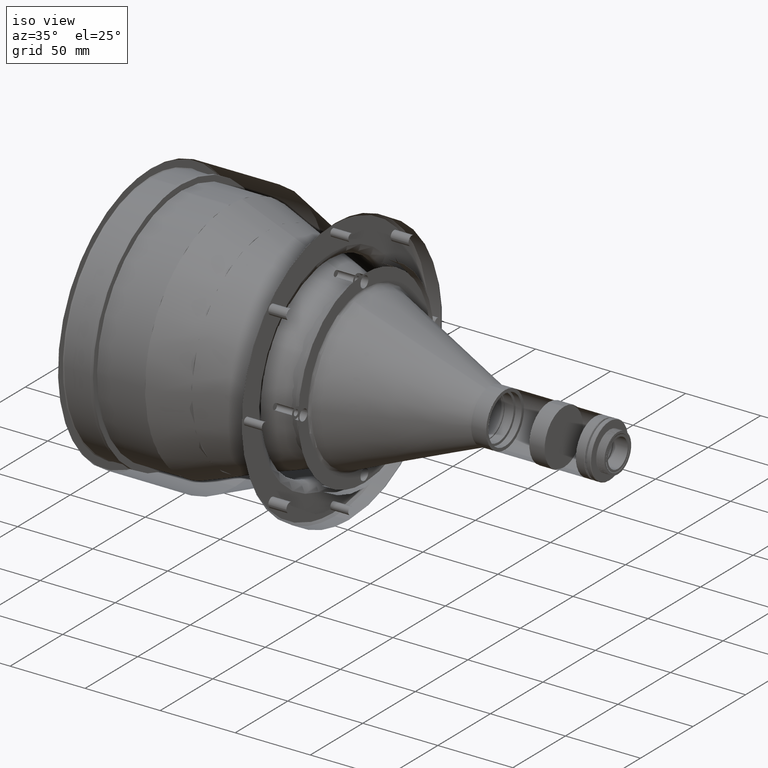
[diagram: clean part render]
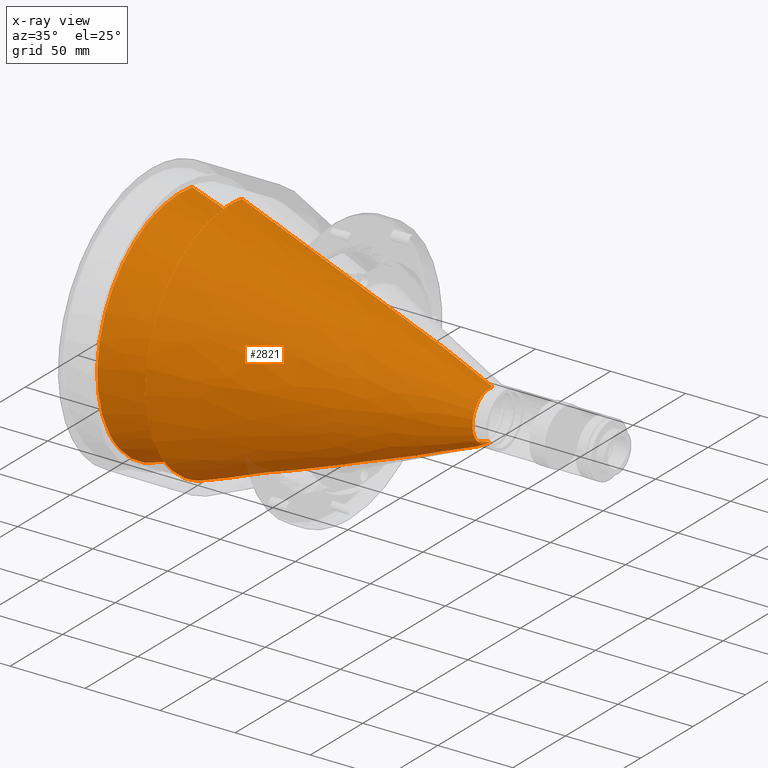
[diagram: x-ray — body ghosted, one internal face saturated and labeled with its STEP entity id]
A machine part, iso view, then the same camera in x-ray: the body is ghosted and one INTERNAL B-rep face — a face not visible from any outside direction — is saturated and labeled: STEP entity #2821.
In plain terms, the highlighted face is a freeform B-spline surface patch.
Its self-contained STEP definition (entity closure, byte-faithful):
#152 = CARTESIAN_POINT ( 'NONE',  ( 312.8281239397300055, 0.6957813332210079915, -63.53453887340629080 ) ) ;
#194 = CARTESIAN_POINT ( 'NONE',  ( 38.05671031457399067, 6.376084525311458862, 10.19077467003822690 ) ) ;
#306 = CARTESIAN_POINT ( 'NONE',  ( 71.03891171600001542, -51.15315837823911238, -6.280906261903766108 ) ) ;
#398 = CARTESIAN_POINT ( 'NONE',  ( 71.03891171600000121, -34.62062153171639522, -140.6741578192900022 ) ) ;
#464 = CARTESIAN_POINT ( 'NONE',  ( 38.05671031457398357, -66.87561608679088465, -26.78701782049433433 ) ) ;
#486 = CARTESIAN_POINT ( 'NONE',  ( 71.03891171600000121, -72.20174824662568369, -33.16643465276770542 ) ) ;
#549 = CARTESIAN_POINT ( 'NONE',  ( 38.05671031457399778, -44.70217141677154160, -3.527501844112061136 ) ) ;
#576 = CARTESIAN_POINT ( 'NONE',  ( 71.03891171600000121, -60.70361418970979628, -120.7859396660685150 ) ) ;
#645 = CARTESIAN_POINT ( 'NONE',  ( 38.05671031457398357, -53.84246253192723941, -125.5366221208920336 ) ) ;
#670 = CARTESIAN_POINT ( 'NONE',  ( 71.03891171599997278, -79.47456246737256436, -56.75482404482161769 ) ) ;
#700 = CARTESIAN_POINT ( 'NONE',  ( 71.03891171600000121, -35.34352670410090269, 5.169056963025440155 ) ) ;
#740 = CARTESIAN_POINT ( 'NONE',  ( 38.05671031457397646, -71.72742678579534470, -100.4569420329792422 ) ) ;
#829 = CARTESIAN_POINT ( 'NONE',  ( 38.05671031457399067, -46.89464270951236813, -5.098048380680411995 ) ) ;
#934 = ORIENTED_EDGE ( 'NONE', *, *, #12812, .F. ) ;
#943 = CARTESIAN_POINT ( 'NONE',  ( 71.03891171600000121, -29.89679541622244940, 6.262689679596229908 ) ) ;
#1032 = CARTESIAN_POINT ( 'NONE',  ( 71.03891171599997278, -9.975618067402605149, 11.45282962155964235 ) ) ;
#1047 = CARTESIAN_POINT ( 'NONE',  ( 38.05671031457399778, 0.000000000000000000, -146.8487528718239901 ) ) ;
#1154 = EDGE_LOOP ( 'NONE', ( #15672, #934, #14137, #7900 ) ) ;
#1200 = CARTESIAN_POINT ( 'NONE',  ( 38.05671031457399778, 0.000000000000000000, -146.8487528718239901 ) ) ;
#1459 = CARTESIAN_POINT ( 'NONE',  ( 312.8281239397300055, 4.629745305157979551, -69.28085245303498141 ) ) ;
#1556 = CARTESIAN_POINT ( 'NONE',  ( 38.05671031457399778, -54.28194762667949647, -9.720746882253679999 ) ) ;
#1655 = CARTESIAN_POINT ( 'NONE',  ( 71.03891171600000121, -81.22995249915329907, -74.31113822075759856 ) ) ;
#1718 = CARTESIAN_POINT ( 'NONE',  ( 71.03891171600000121, -68.25673915228760791, -25.93023645105522590 ) ) ;
#1744 = CARTESIAN_POINT ( 'NONE',  ( 38.05671031457399778, -69.11688307345339410, -28.31801530551019752 ) ) ;
#1749 = EDGE_CURVE ( 'NONE', #13409, #3978, #9203, .T. ) ;
#1807 = CARTESIAN_POINT ( 'NONE',  ( 71.03891171600002963, -6.879268089577080580, -148.2616033100123332 ) ) ;
#1895 = CARTESIAN_POINT ( 'NONE',  ( 71.03891171600000121, -41.84726043167843557, -136.7127365195804316 ) ) ;
#1963 = CARTESIAN_POINT ( 'NONE',  ( 38.05671031457399778, -37.53446332763071780, -137.4043306474347617 ) ) ;
#1986 = CARTESIAN_POINT ( 'NONE',  ( 71.03891171600001542, -69.66581142555800454, -28.29272098538241664 ) ) ;
#2014 = CARTESIAN_POINT ( 'NONE',  ( 301.8340568059210227, 0.7908612350757660003, -73.46420596432228933 ) ) ;
#2053 = CARTESIAN_POINT ( 'NONE',  ( 38.05671031457399778, -36.66643379590394147, 1.421971415113263193 ) ) ;
#2079 = CARTESIAN_POINT ( 'NONE',  ( 71.03891171600000121, -51.92249416976681431, -129.5218628087218065 ) ) ;
#2147 = CARTESIAN_POINT ( 'NONE',  ( 38.05671031457397646, -77.07840901102601094, -83.80246185347523635 ) ) ;
#2236 = CARTESIAN_POINT ( 'NONE',  ( 38.05671031457396936, -61.45554576600308394, -19.04915952185774941 ) ) ;
#2821 = ADVANCED_FACE ( 'NONE', ( #5855 ), #15505, .F. ) ;
#2867 = CARTESIAN_POINT ( 'NONE',  ( 312.8281239397310287, 2.101415294670490042, -63.86624048085550243 ) ) ;
#2959 = CARTESIAN_POINT ( 'NONE',  ( 71.03891171600000121, -9.827790563158519581E-15, -148.4731538720080266 ) ) ;
#3118 = CARTESIAN_POINT ( 'NONE',  ( 71.03891171600000121, -57.19197900579691662, -11.91127326299534772 ) ) ;
#3146 = CARTESIAN_POINT ( 'NONE',  ( 301.8340568059210227, 4.928570840658109908, -66.29045889944379155 ) ) ;
#3183 = CARTESIAN_POINT ( 'NONE',  ( 38.05671031457399778, -15.09690114236384240, 8.951187844582982223 ) ) ;
#3203 = CARTESIAN_POINT ( 'NONE',  ( 71.03891171600000121, -41.00348297132352116, 0.8163269138792726975 ) ) ;
#3291 = CARTESIAN_POINT ( 'NONE',  ( 71.03891171599997278, -78.38578406122067577, -85.47537681962413103 ) ) ;
#3358 = CARTESIAN_POINT ( 'NONE',  ( 38.05671031457398357, -65.92607116230033171, -111.0898646095812694 ) ) ;
#3381 = CARTESIAN_POINT ( 'NONE',  ( 71.03891171600000121, -80.26018975375622233, -67.71771501864100173 ) ) ;
#3448 = CARTESIAN_POINT ( 'NONE',  ( 38.05671031457399067, -76.26405228424427207, -49.04826227293060725 ) ) ;
#3472 = CARTESIAN_POINT ( 'NONE',  ( 71.03891171599998700, -70.15944715759702888, -107.2800362242419965 ) ) ;
#3541 = CARTESIAN_POINT ( 'NONE',  ( 38.05671031457398357, -78.51959019937328321, -73.12674455888888758 ) ) ;
#3635 = CARTESIAN_POINT ( 'NONE',  ( 38.05671031457399067, -56.03466016865046839, -13.05146247734951537 ) ) ;
#3662 = CARTESIAN_POINT ( 'NONE',  ( 71.03891171599998700, -31.17459507432075227, 5.736942135528978248 ) ) ;
#3734 = CARTESIAN_POINT ( 'NONE',  ( 38.05671031457398357, -71.87527263645489484, -36.32064329710928519 ) ) ;
#3978 = VERTEX_POINT ( 'NONE', #1047 ) ;
#4365 = CARTESIAN_POINT ( 'NONE',  ( 301.8340568059219891, 4.588428590419959541, -70.87047576100739832 ) ) ;
#4458 = CARTESIAN_POINT ( 'NONE',  ( 301.8340568059219891, 2.344381037844579740, -63.36167525664220079 ) ) ;
#4552 = CARTESIAN_POINT ( 'NONE',  ( 38.05671031457399778, -35.28419912749359355, -141.4857888673030004 ) ) ;
#4606 = CARTESIAN_POINT ( 'NONE',  ( 71.03891171600002963, -44.48213796145648757, -1.415300178817668453 ) ) ;
#4697 = CARTESIAN_POINT ( 'NONE',  ( 71.03891171600001542, -23.08043111412778003, -145.1697674717686368 ) ) ;
#4765 = CARTESIAN_POINT ( 'NONE',  ( 38.05671031457399067, -76.87633949925070453, -51.67513521243261465 ) ) ;
#4788 = CARTESIAN_POINT ( 'NONE',  ( 71.03891171600000121, -45.31992441818988482, -134.4656149674768244 ) ) ;
#4854 = CARTESIAN_POINT ( 'NONE',  ( 38.05671031457399778, -40.17326951209265928, -0.5810521141859347205 ) ) ;
#4878 = CARTESIAN_POINT ( 'NONE',  ( 71.03891171599998700, -71.45425817169692095, -104.8574821450771566 ) ) ;
#4904 = CARTESIAN_POINT ( 'NONE',  ( 38.05671031457399778, 0.000000000000000000, -146.8487528718239901 ) ) ;
#4906 = CARTESIAN_POINT ( 'NONE',  ( 38.05671031457399778, 11.71913937209819956, 9.525873457250620291 ) ) ;
#4943 = CARTESIAN_POINT ( 'NONE',  ( 38.05671031457398357, -75.24601029676011876, -45.13831364069653773 ) ) ;
#4964 = CARTESIAN_POINT ( 'NONE',  ( 71.03891171600000121, -80.25701044225991154, -69.09953360225745200 ) ) ;
#5032 = CARTESIAN_POINT ( 'NONE',  ( 38.05671031457399067, -29.29185173212004756, 4.754860463382906133 ) ) ;
#5127 = CARTESIAN_POINT ( 'NONE',  ( 38.05671031457397646, -73.29298297572074716, -96.71802628340445551 ) ) ;
#5148 = CARTESIAN_POINT ( 'NONE',  ( 71.03891171599998700, -14.05116279898930642, 10.79925034908082004 ) ) ;
#5327 = CARTESIAN_POINT ( 'NONE',  ( 71.03891171599997278, -15.40828778296894264, 10.54571033745595088 ) ) ;
#5660 = CARTESIAN_POINT ( 'NONE',  ( 301.8340568059210227, 1.098064737847640227E-15, -63.00322316175550696 ) ) ;
#5855 = FACE_OUTER_BOUND ( 'NONE', #1154, .T. ) ;
#5897 = CARTESIAN_POINT ( 'NONE',  ( 38.05671031457399778, 2.338099930417981476, 10.37945372494602481 ) ) ;
#5988 = CARTESIAN_POINT ( 'NONE',  ( 38.05671031457399778, 11.71905027885016004, 9.525284016133939602 ) ) ;
#6009 = CARTESIAN_POINT ( 'NONE',  ( 71.03891171600000121, -47.86361056173475248, -3.794017034601437910 ) ) ;
#6076 = CARTESIAN_POINT ( 'NONE',  ( 38.05671031457399778, -13.76687304012811097, 9.199642144594054827 ) ) ;
#6095 = CARTESIAN_POINT ( 'NONE',  ( 71.03891171600000121, -80.14171854056162658, -73.22880005160756411 ) ) ;
#6108 = VERTEX_POINT ( 'NONE', #13522 ) ;
#6119 = CARTESIAN_POINT ( 'NONE',  ( 301.8340568059210227, 1.098064737847640227E-15, -63.00322316175550696 ) ) ;
#6163 = CARTESIAN_POINT ( 'NONE',  ( 38.05671031457399778, -30.54388108301824900, 4.239738514417793702 ) ) ;
#6184 = CARTESIAN_POINT ( 'NONE',  ( 71.03891171599998700, -57.89578625190578975, -123.8114025171873465 ) ) ;
#6252 = CARTESIAN_POINT ( 'NONE',  ( 38.05671031457400488, -33.92057187863734669, -139.2072266835781420 ) ) ;
#6275 = CARTESIAN_POINT ( 'NONE',  ( 71.03891171599998700, -68.02988693482525662, -110.8134174175578437 ) ) ;
#6302 = CARTESIAN_POINT ( 'NONE',  ( 71.03891171600000121, -9.827790563158519581E-15, -148.4731538720080266 ) ) ;
#6347 = CARTESIAN_POINT ( 'NONE',  ( 38.05671031457399067, -22.61435096974433279, -143.6118960994778320 ) ) ;
#6370 = CARTESIAN_POINT ( 'NONE',  ( 71.03891171600000121, -60.01430685627177297, -14.92828249250329975 ) ) ;
#6439 = CARTESIAN_POINT ( 'NONE',  ( 38.05671031457398357, -70.00832826489842375, -104.1151409645158594 ) ) ;
#6526 = CARTESIAN_POINT ( 'NONE',  ( 38.05671031457398357, -55.77844643650935552, -123.6538344810680172 ) ) ;
#6593 = CARTESIAN_POINT ( 'NONE',  ( 312.8280654524806437, -0.6972131858392265347, -72.84861536536843118 ) ) ;
#6682 = CARTESIAN_POINT ( 'NONE',  ( 71.03891171600000121, 11.96116315722558099, 11.13154888017520072 ) ) ;
#6819 = CARTESIAN_POINT ( 'NONE',  ( 71.03891171599998700, 6.507525218361130293, 11.81084046286517086 ) ) ;
#7152 = CARTESIAN_POINT ( 'NONE',  ( 38.05671031457399778, -77.80594151716410067, -50.46336826456379754 ) ) ;
#7220 = CARTESIAN_POINT ( 'NONE',  ( 71.03891171600000121, -9.827790563158519581E-15, -148.4731538720080266 ) ) ;
#7292 = CARTESIAN_POINT ( 'NONE',  ( 38.05671031457399778, 9.054373412062425075, 9.926819279266585028 ) ) ;
#7342 = CARTESIAN_POINT ( 'NONE',  ( 71.03891171600000121, -79.41340843399309790, -50.09645196926359745 ) ) ;
#7401 = CARTESIAN_POINT ( 'NONE',  ( 71.03891171599997278, -75.45663717382562652, -40.76410658585540148 ) ) ;
#7427 = CARTESIAN_POINT ( 'NONE',  ( 312.8281239397300055, 3.231429552567260277, -71.70604224714951158 ) ) ;
#7486 = CARTESIAN_POINT ( 'NONE',  ( 71.03891171600000121, -73.76338217447010948, -99.86045339898154793 ) ) ;
#7513 = CARTESIAN_POINT ( 'NONE',  ( 38.05671031457399778, -34.62811162469369464, 3.683469664910870023 ) ) ;
#7553 = CARTESIAN_POINT ( 'NONE',  ( 38.05671031457399778, -43.58204880972693473, -2.767818743318413155 ) ) ;
#7575 = CARTESIAN_POINT ( 'NONE',  ( 71.03891171600000121, -79.81490310514577402, -77.33695620152366246 ) ) ;
#7638 = CARTESIAN_POINT ( 'NONE',  ( 38.05671031457399067, -33.01251345188338604, 3.149380294662648350 ) ) ;
#7661 = CARTESIAN_POINT ( 'NONE',  ( 71.03891171600001542, -77.43014013100987825, -89.49153582096178638 ) ) ;
#7690 = CARTESIAN_POINT ( 'NONE',  ( 38.05671031457399778, -11.89424866322150010, 10.69213265681179870 ) ) ;
#7732 = CARTESIAN_POINT ( 'NONE',  ( 38.05671031457399778, -58.79934955808261066, -16.00684351903584712 ) ) ;
#7756 = CARTESIAN_POINT ( 'NONE',  ( 71.03891171600000121, -62.72555713833635593, -18.03363707061233612 ) ) ;
#7829 = CARTESIAN_POINT ( 'NONE',  ( 38.05671031457398357, -78.63556903991303670, -67.72805215109974597 ) ) ;
#7900 = ORIENTED_EDGE ( 'NONE', *, *, #1749, .F. ) ;
#7917 = CARTESIAN_POINT ( 'NONE',  ( 38.05671031457399067, -56.97491616675443282, -14.02271015798575071 ) ) ;
#8030 = CARTESIAN_POINT ( 'NONE',  ( 71.03891171600000121, -18.10453276335696771, 9.970320061962231861 ) ) ;
#8169 = CARTESIAN_POINT ( 'NONE',  ( 301.8339907913104980, -0.7779195069641582361, -73.38405174111143481 ) ) ;
#8541 = CARTESIAN_POINT ( 'NONE',  ( 38.05671031457399778, -74.29007776344430170, -97.37782023635080009 ) ) ;
#8635 = CARTESIAN_POINT ( 'NONE',  ( 71.03891171600000121, -75.82490710841180714, -97.98015420645459983 ) ) ;
#8731 = CARTESIAN_POINT ( 'NONE',  ( 38.05671031457399778, -11.76236210487919998, -146.8487528719979878 ) ) ;
#8796 = CARTESIAN_POINT ( 'NONE',  ( 71.03891171599998700, -80.19601892180773461, -64.96414132307256750 ) ) ;
#8823 = CARTESIAN_POINT ( 'NONE',  ( 301.8340568059210227, 5.165566925738009907, -69.40314593701710066 ) ) ;
#8882 = CARTESIAN_POINT ( 'NONE',  ( 71.03891171600000121, -56.93094650219146047, -124.7989138197957004 ) ) ;
#8908 = CARTESIAN_POINT ( 'NONE',  ( 312.8281239397300055, 2.059658160379710168, -72.49963462750740462 ) ) ;
#8969 = CARTESIAN_POINT ( 'NONE',  ( 71.03891171600000121, -10.96750392477119362, -147.7327269050224743 ) ) ;
#9034 = CARTESIAN_POINT ( 'NONE',  ( 38.05671031457399067, -47.70366460303858958, -130.7829342896594369 ) ) ;
#9059 = CARTESIAN_POINT ( 'NONE',  ( 71.03891171600000121, -79.99397388216713978, -60.84406154141084500 ) ) ;
#9126 = CARTESIAN_POINT ( 'NONE',  ( 38.05671031457398357, -78.19939772986202797, -77.15153695879597251 ) ) ;
#9149 = CARTESIAN_POINT ( 'NONE',  ( 71.03891171600000121, -78.74357346914212030, -52.68614807161412017 ) ) ;
#9203 = B_SPLINE_CURVE_WITH_KNOTS ( 'NONE', 3,
 ( #5988, #7292, #194, #5897, #10176, #10346, #10264, #15935, #6076, #3183, #14553, #11748, #16018, #5032, #6163, #7638, #2053, #4854, #7553, #549, #829, #9404, #14823, #3635, #7917, #7732, #2236, #9220, #464, #16293, #13244, #16386, #3734, #11833, #17514, #4943, #3448, #4765, #15095, #10617, #13424, #17792, #7829, #14917, #3541, #9126, #17884, #2147, #13516, #10434, #15008, #5127, #13607, #740, #6439, #12112, #16111, #3358, #10709, #16200, #9313, #13335, #6526, #645, #12205, #9034, #10799, #16477, #14732, #1963, #6252, #11925, #17606, #10521, #6347, #12018, #17703, #18251, #11267, #16664, #9493, #1200 ),
 .UNSPECIFIED., .F., .F.,
 ( 4, 2, 2, 1, 2, 2, 1, 2, 2, 1, 2, 2, 1, 2, 2, 1, 2, 2, 2, 2, 1, 2, 2, 1, 2, 2, 1, 2, 2, 1, 2, 2, 2, 2, 1, 2, 2, 1, 2, 2, 1, 2, 2, 1, 2, 2, 1, 4 ),
 ( 0.4761805262573740039, 0.4925498848118309847, 0.5007345640890594751, 0.5089192433662879100, 0.5252886019207448909, 0.5334732811979734368, 0.5416579604752018717, 0.5580273190296589636, 0.5662119983068873985, 0.5743966775841158334, 0.5907660361385729253, 0.5989507154158013602, 0.6071353946930299061, 0.6235047532474868870, 0.6316894325247153219, 0.6398741118019438678, 0.6562434703564008487, 0.6726128289108578295, 0.6807975081880862644, 0.6889821874653148104, 0.7053515460197717912, 0.7135362252970003372, 0.7217209045742287721, 0.7380902631286858639, 0.7462749424059142989, 0.7544596216831427338, 0.7708289802375998256, 0.7790136595148283716, 0.7871983387920569175, 0.8035676973465138984, 0.8117523766237424443, 0.8199370559009708792, 0.8363064144554279711, 0.8444910937326564060, 0.8526757730098849519, 0.8690451315643421548, 0.8772298108415707008, 0.8854144901187992467, 0.9017838486732564496, 0.9099685279504849955, 0.9181532072277136525, 0.9345225657821709664, 0.9427072450593996233, 0.9508919243366282803, 0.9672612828910855942, 0.9754459621683142512, 0.9836306414455426861, 1.000000000000000000 ),
 .UNSPECIFIED. ) ;
#9220 = CARTESIAN_POINT ( 'NONE',  ( 38.05671031457397646, -63.87038033670842907, -22.28982340841998422 ) ) ;
#9313 = CARTESIAN_POINT ( 'NONE',  ( 38.05671031457398357, -59.47543663570463224, -119.7212755075027104 ) ) ;
#9336 = CARTESIAN_POINT ( 'NONE',  ( 71.03891171599998700, 9.241151642608166128, 11.54141268647882690 ) ) ;
#9404 = CARTESIAN_POINT ( 'NONE',  ( 38.05671031457398357, -50.11734025242395774, -7.534409520270346938 ) ) ;
#9493 = CARTESIAN_POINT ( 'NONE',  ( 38.05671031457399067, -2.704462623055752246, -146.8487528719999773 ) ) ;
#9936 = CARTESIAN_POINT ( 'NONE',  ( 301.8340568059210227, 0.7768370804718148781, -62.99320131381438870 ) ) ;
#10033 = EDGE_CURVE ( 'NONE', #17008, #13409, #11111, .T. ) ;
#10036 = CARTESIAN_POINT ( 'NONE',  ( 71.03891171600000121, -55.40340998918549786, -8.512090037330882097 ) ) ;
#10176 = CARTESIAN_POINT ( 'NONE',  ( 38.05671031457399067, 0.9874648502324039345, 10.40780510535132386 ) ) ;
#10226 = CARTESIAN_POINT ( 'NONE',  ( 38.05671031457399778, -79.58571553875989935, -74.18790672089190252 ) ) ;
#10264 = CARTESIAN_POINT ( 'NONE',  ( 38.05671031457401199, -5.759467590481850863, 10.27320223436879587 ) ) ;
#10284 = CARTESIAN_POINT ( 'NONE',  ( 71.03891171600000121, -29.55228681455976414, -142.8463717160667272 ) ) ;
#10308 = CARTESIAN_POINT ( 'NONE',  ( 312.8281239397300055, -2.177865437639179972E-15, -63.54469016175830376 ) ) ;
#10346 = CARTESIAN_POINT ( 'NONE',  ( 38.05671031457401199, -1.715349647835610947, 10.39542016807629743 ) ) ;
#10367 = CARTESIAN_POINT ( 'NONE',  ( 71.03891171600000121, -67.28834610576751629, -111.9751605972152646 ) ) ;
#10434 = CARTESIAN_POINT ( 'NONE',  ( 38.05671031457399067, -75.86306440271476959, -89.06023311745828153 ) ) ;
#10455 = CARTESIAN_POINT ( 'NONE',  ( 71.03891171600000121, -30.83236577030462300, -142.3265620912832503 ) ) ;
#10521 = CARTESIAN_POINT ( 'NONE',  ( 38.05671031457399067, -26.43049243160304940, -142.2860806473529749 ) ) ;
#10547 = CARTESIAN_POINT ( 'NONE',  ( 71.03891171600000121, -65.74475508714174055, -114.2622733340349725 ) ) ;
#10617 = CARTESIAN_POINT ( 'NONE',  ( 38.05671031457399067, -77.86580887978617227, -56.98634003731132225 ) ) ;
#10640 = CARTESIAN_POINT ( 'NONE',  ( 71.03891171600000121, -19.09286429060104950, -146.2178535222223559 ) ) ;
#10666 = CARTESIAN_POINT ( 'NONE',  ( 71.03891171600000121, 4.047404929998219991, 12.32462496191249990 ) ) ;
#10709 = CARTESIAN_POINT ( 'NONE',  ( 38.05671031457397646, -64.41414385769385831, -113.3301624749999093 ) ) ;
#10757 = CARTESIAN_POINT ( 'NONE',  ( 71.03891171600000121, 11.96125621390869931, 11.13216452974696047 ) ) ;
#10799 = CARTESIAN_POINT ( 'NONE',  ( 38.05671031457399778, -44.40267328799469482, -133.1246548485498238 ) ) ;
#11043 = EDGE_CURVE ( 'NONE', #6108, #3978, #13977, .T. ) ;
#11111 = B_SPLINE_CURVE_WITH_KNOTS ( 'NONE', 3,
 ( #6682, #6593, #8169, #15336 ),
 .UNSPECIFIED., .F., .F.,
 ( 4, 4 ),
 ( 2.683958177129584988E-07, 0.9999997825141289098 ),
 .UNSPECIFIED. ) ;
#11267 = CARTESIAN_POINT ( 'NONE',  ( 38.05671031457400488, -10.74591643880151537, -146.1233164662070578 ) ) ;
#11344 = CARTESIAN_POINT ( 'NONE',  ( 71.03891171600000121, -61.67157694810880031, -122.5226568768920146 ) ) ;
#11684 = CARTESIAN_POINT ( 'NONE',  ( 71.03891171600001542, -45.62555576694427373, -2.190806595273814494 ) ) ;
#11748 = CARTESIAN_POINT ( 'NONE',  ( 38.05671031457399067, -21.66967502543441881, 7.442504084687838528 ) ) ;
#11769 = CARTESIAN_POINT ( 'NONE',  ( 71.03891171600000121, -73.90891809277397329, -36.92739439100024867 ) ) ;
#11797 = CARTESIAN_POINT ( 'NONE',  ( 312.8281239397300055, -0.2361222709996370073, -72.91860581494999849 ) ) ;
#11833 = CARTESIAN_POINT ( 'NONE',  ( 38.05671031457399067, -72.41303700199688365, -37.56130259237985314 ) ) ;
#11854 = CARTESIAN_POINT ( 'NONE',  ( 71.03891171600000121, -15.04385428868166485, -147.0624387474012167 ) ) ;
#11925 = CARTESIAN_POINT ( 'NONE',  ( 38.05671031457399067, -30.20825927470711747, -140.8265745785229512 ) ) ;
#11949 = CARTESIAN_POINT ( 'NONE',  ( 71.03891171600000121, -78.46463351761801164, -51.33327658664935456 ) ) ;
#11979 = CARTESIAN_POINT ( 'NONE',  ( 71.03891171600000121, -12.13998325435609971, 12.32251858688790058 ) ) ;
#12018 = CARTESIAN_POINT ( 'NONE',  ( 38.05671031457399778, -18.70712717697344019, -144.6388780566256855 ) ) ;
#12041 = CARTESIAN_POINT ( 'NONE',  ( 71.03891171600000121, -74.80715963436007598, -97.30695579525853134 ) ) ;
#12112 = CARTESIAN_POINT ( 'NONE',  ( 38.05671031457398357, -68.73972386227305265, -106.4886503602495083 ) ) ;
#12205 = CARTESIAN_POINT ( 'NONE',  ( 38.05671031457398357, -50.87231743202560352, -128.2803934304872087 ) ) ;
#12319 = CARTESIAN_POINT ( 'NONE',  ( 71.03891171600001542, -33.69459825197845504, 4.623878143625129056 ) ) ;
#12407 = CARTESIAN_POINT ( 'NONE',  ( 71.03891171599998700, -1.750642556210357359, 12.01965579850562449 ) ) ;
#12812 = EDGE_CURVE ( 'NONE', #6108, #17008, #13492, .T. ) ;
#12834 = CARTESIAN_POINT ( 'NONE',  ( 312.8281239397300055, 4.112441933865550681, -70.59563760184620662 ) ) ;
#12934 = CARTESIAN_POINT ( 'NONE',  ( 71.03891171600000121, -12.00537192621940008, -148.4731538720080266 ) ) ;
#13087 = CARTESIAN_POINT ( 'NONE',  ( 71.03891171600000121, -54.24010306769937273, -9.014016194138674720 ) ) ;
#13175 = CARTESIAN_POINT ( 'NONE',  ( 71.03891171600000121, -13.68609535550549161, -147.3096257810306042 ) ) ;
#13195 = CARTESIAN_POINT ( 'NONE',  ( 71.03891171600000121, 11.96116315722558099, 11.13154888017520072 ) ) ;
#13204 = CARTESIAN_POINT ( 'NONE',  ( 312.8281239397300055, -0.6972158955546549075, -72.84863334258150758 ) ) ;
#13244 = CARTESIAN_POINT ( 'NONE',  ( 38.05671031457398357, -70.14182039062619367, -32.66958729998061273 ) ) ;
#13267 = CARTESIAN_POINT ( 'NONE',  ( 71.03891171600000121, -63.34729499089205973, -117.6254080635794850 ) ) ;
#13335 = CARTESIAN_POINT ( 'NONE',  ( 38.05671031457398357, -56.72403530899107693, -122.6859856291268898 ) ) ;
#13356 = CARTESIAN_POINT ( 'NONE',  ( 71.03891171600000121, -26.97583317006550274, -143.8164301834024457 ) ) ;
#13409 = VERTEX_POINT ( 'NONE', #14323 ) ;
#13424 = CARTESIAN_POINT ( 'NONE',  ( 38.05671031457397646, -78.37466198838798448, -60.99250059355649256 ) ) ;
#13449 = CARTESIAN_POINT ( 'NONE',  ( 71.03891171600000121, -79.17080236915344926, -81.41344690228891068 ) ) ;
#13492 = B_SPLINE_CURVE_WITH_KNOTS ( 'NONE', 3,
 ( #7220, #14489, #1807, #8969, #13175, #11854, #10640, #4697, #13356, #10284, #10455, #398, #17633, #1895, #16041, #4788, #15956, #2079, #17536, #8882, #6184, #576, #13267, #10547, #10367, #6275, #3472, #4878, #16224, #7486, #12041, #14573, #7661, #3291, #16134, #13449, #7575, #6095, #4964, #3381, #8796, #9059, #670, #9149, #11949, #17727, #14756, #7401, #11769, #17449, #486, #14664, #1986, #1718, #14845, #7756, #6370, #17364, #3118, #13087, #306, #6009, #11684, #4606, #3203, #15293, #12319, #3662, #943, #14941, #13811, #8030, #5327, #5148, #1032, #16689, #12407, #18088, #15029, #6819, #9336, #16315 ),
 .UNSPECIFIED., .F., .F.,
 ( 4, 1, 2, 2, 1, 2, 2, 1, 2, 2, 1, 2, 2, 1, 2, 2, 2, 2, 1, 2, 2, 1, 2, 2, 1, 2, 2, 1, 2, 2, 2, 2, 1, 2, 2, 1, 2, 2, 1, 2, 2, 1, 2, 2, 1, 2, 2, 4 ),
 ( 0.000000000000000000, 0.01636939260976893670, 0.02455408891465341026, 0.03273878521953788034, 0.04910817782930685521, 0.05729287413419136693, 0.06547757043907587171, 0.08184696304884485352, 0.09003165935372932360, 0.09821635565861382144, 0.1145857482683827755, 0.1227704445732672733, 0.1309551408781517989, 0.1473245334879207113, 0.1555092297928051259, 0.1636939260976895405, 0.1800633187074583974, 0.1882480150123428120, 0.1964327113172271988, 0.2128021039269960835, 0.2209868002318805258, 0.2291714965367649126, 0.2455408891465337140, 0.2537255854514181008, 0.2619102817563025432, 0.2782796743660712058, 0.2864643706709554816, 0.2946490669758397574, 0.3110184595856084200, 0.3192031558904927513, 0.3273878521953771381, 0.3437572448051457452, 0.3601266374149144078, 0.3683113337197987391, 0.3764960300246831260, 0.3928654226344517331, 0.4010501189393360644, 0.4092348152442203402, 0.4256042078539890028, 0.4337889041588732786, 0.4419736004637576654, 0.4583429930735262725, 0.4665276893784106593, 0.4747123856832949906, 0.4910817782930636533, 0.4992664745979479846, 0.5074511709028323159, 0.5238205635126009785 ),
 .UNSPECIFIED. ) ;
#13516 = CARTESIAN_POINT ( 'NONE',  ( 38.05671031457398357, -76.79918591385670368, -85.12599726308781101 ) ) ;
#13522 = CARTESIAN_POINT ( 'NONE',  ( 71.03891171600000121, -9.827790563158519581E-15, -148.4731538720080266 ) ) ;
#13607 = CARTESIAN_POINT ( 'NONE',  ( 38.05671031457398357, -72.27013716560132650, -99.22046244757828504 ) ) ;
#13811 = CARTESIAN_POINT ( 'NONE',  ( 71.03891171599997278, -22.11791480131347853, 9.005564272117622338 ) ) ;
#13977 = B_SPLINE_CURVE_WITH_KNOTS ( 'NONE', 3,
 ( #6302, #10308, #6119, #4904 ),
 .UNSPECIFIED., .F., .F.,
 ( 4, 4 ),
 ( 0.000000000000000000, 1.000000000000000000 ),
 .UNSPECIFIED. ) ;
#14137 = ORIENTED_EDGE ( 'NONE', *, *, #11043, .T. ) ;
#14231 = CARTESIAN_POINT ( 'NONE',  ( 301.8340568059210227, 5.285898370020950310, -67.82463771950598641 ) ) ;
#14323 = CARTESIAN_POINT ( 'NONE',  ( 38.05671031457399778, 11.71905027885016004, 9.525284016133939602 ) ) ;
#14324 = CARTESIAN_POINT ( 'NONE',  ( 312.8281239397310287, 4.416915519460260064, -66.49127402079379578 ) ) ;
#14426 = CARTESIAN_POINT ( 'NONE',  ( 301.8340568059210227, 4.011765087190210188, -64.68728874446179589 ) ) ;
#14489 = CARTESIAN_POINT ( 'NONE',  ( 71.03891171600000121, -2.759986187104959576, -148.4731538720081971 ) ) ;
#14516 = CARTESIAN_POINT ( 'NONE',  ( 71.03891171600000121, -70.54483447110300176, -27.49357710958269863 ) ) ;
#14553 = CARTESIAN_POINT ( 'NONE',  ( 38.05671031457401199, -17.73806305709203102, 8.387588118326330999 ) ) ;
#14573 = CARTESIAN_POINT ( 'NONE',  ( 71.03891171599998700, -76.27115544759099919, -93.44572395704837220 ) ) ;
#14664 = CARTESIAN_POINT ( 'NONE',  ( 71.03891171600000121, -71.59121449691875227, -31.93551078510166619 ) ) ;
#14732 = CARTESIAN_POINT ( 'NONE',  ( 38.05671031457399067, -41.00072304421917124, -135.3261123994932120 ) ) ;
#14756 = CARTESIAN_POINT ( 'NONE',  ( 71.03891171600001542, -76.80085542960240730, -44.66226195910693519 ) ) ;
#14823 = CARTESIAN_POINT ( 'NONE',  ( 38.05671031457397646, -53.14200960673681351, -10.21239466407252650 ) ) ;
#14845 = CARTESIAN_POINT ( 'NONE',  ( 71.03891171599998700, -65.19006197909767764, -21.34095538264192271 ) ) ;
#14917 = CARTESIAN_POINT ( 'NONE',  ( 38.05671031457397646, -78.63248810312546766, -69.08181247480555953 ) ) ;
#14941 = CARTESIAN_POINT ( 'NONE',  ( 71.03891171599998700, -26.03834054139349874, 7.735797352460944687 ) ) ;
#15008 = CARTESIAN_POINT ( 'NONE',  ( 38.05671031457399067, -74.72756049022704872, -92.93427510245879830 ) ) ;
#15029 = CARTESIAN_POINT ( 'NONE',  ( 71.03891171599998700, 2.386524058605112408, 12.00340454400877199 ) ) ;
#15095 = CARTESIAN_POINT ( 'NONE',  ( 38.05671031457398357, -77.14971525489796988, -53.00086793887822267 ) ) ;
#15293 = CARTESIAN_POINT ( 'NONE',  ( 71.03891171600001542, -37.42437805573941034, 2.860610304962475592 ) ) ;
#15336 = CARTESIAN_POINT ( 'NONE',  ( 38.05671031457399778, 11.71905027885016004, 9.525284016133939602 ) ) ;
#15505 = B_SPLINE_SURFACE_WITH_KNOTS ( 'NONE', 3, 3, ( 
 ( #2959, #18408, #5660, #17209 ),
 ( #12934, #152, #9936, #8731 ),
 ( #17019, #2867, #4458, #4552 ),
 ( #11344, #15897, #14426, #15622 ),
 ( #8635, #14324, #3146, #8541 ),
 ( #1655, #17388, #14231, #10226 ),
 ( #7342, #1459, #8823, #7152 ),
 ( #14516, #12834, #4365, #1744 ),
 ( #10036, #7427, #15713, #1556 ),
 ( #700, #8908, #16163, #7513 ),
 ( #11979, #17841, #2014, #7690 ),
 ( #10666, #11797, #16068, #17663 ),
 ( #10757, #13204, #16345, #4906 ) ),
 .UNSPECIFIED., .F., .F., .F.,
 ( 4, 1, 1, 1, 1, 1, 1, 1, 1, 1, 4 ),
 ( 4, 4 ),
 ( 0.000000000000000000, 0.07142857142857139685, 0.1428571428571430157, 0.1904761904761899938, 0.2380952380952379988, 0.2857142857142860315, 0.3333333333333329818, 0.3809523809523809867, 0.4285714285714289917, 0.4761904761904759975, 0.5238095238095240580 ),
 ( 0.000000000000000000, 1.000000000000000000 ),
 .UNSPECIFIED. ) ;
#15622 = CARTESIAN_POINT ( 'NONE',  ( 38.05671031457399778, -60.42323587312409927, -121.4235395313269947 ) ) ;
#15672 = ORIENTED_EDGE ( 'NONE', *, *, #10033, .F. ) ;
#15713 = CARTESIAN_POINT ( 'NONE',  ( 301.8340568059210227, 3.605231371703010002, -72.10890470402659957 ) ) ;
#15897 = CARTESIAN_POINT ( 'NONE',  ( 312.8281239397290392, 3.595655063427090070, -65.05361073143549788 ) ) ;
#15935 = CARTESIAN_POINT ( 'NONE',  ( 38.05671031457399778, -9.773274119760770873, 9.840062717276385484 ) ) ;
#15956 = CARTESIAN_POINT ( 'NONE',  ( 71.03891171599997278, -48.68853053859960767, -132.0759873685488799 ) ) ;
#16018 = CARTESIAN_POINT ( 'NONE',  ( 38.05671031457399067, -25.51089428252712921, 6.198366718288873756 ) ) ;
#16041 = CARTESIAN_POINT ( 'NONE',  ( 71.03891171600002963, -44.17283705955591699, -135.2359263826003826 ) ) ;
#16068 = CARTESIAN_POINT ( 'NONE',  ( 301.8340568059210227, -0.2634290399344654809, -73.46208674552609352 ) ) ;
#16111 = CARTESIAN_POINT ( 'NONE',  ( 38.05671031457396936, -66.65300917529383185, -109.9509796159139938 ) ) ;
#16134 = CARTESIAN_POINT ( 'NONE',  ( 71.03891171600000121, -78.67089403391936742, -84.12407060298771455 ) ) ;
#16163 = CARTESIAN_POINT ( 'NONE',  ( 301.8340568059219891, 2.298140314957819896, -72.99485823381380101 ) ) ;
#16200 = CARTESIAN_POINT ( 'NONE',  ( 38.05671031457396936, -62.06566783915013730, -116.6246531603773207 ) ) ;
#16224 = CARTESIAN_POINT ( 'NONE',  ( 71.03891171599997278, -73.20913099122486756, -101.1232011008985125 ) ) ;
#16293 = CARTESIAN_POINT ( 'NONE',  ( 38.05671031457398357, -68.25538927401493083, -29.10049561246784933 ) ) ;
#16315 = CARTESIAN_POINT ( 'NONE',  ( 71.03891171600000121, 11.96116315722558099, 11.13154888017520072 ) ) ;
#16345 = CARTESIAN_POINT ( 'NONE',  ( 301.8340568059210227, -0.7779228962277959791, -73.38407422669048685 ) ) ;
#16386 = CARTESIAN_POINT ( 'NONE',  ( 38.05671031457398357, -70.74003498867347162, -33.87567739107473841 ) ) ;
#16477 = CARTESIAN_POINT ( 'NONE',  ( 38.05671031457399778, -43.27875580363257058, -133.8794508537993693 ) ) ;
#16664 = CARTESIAN_POINT ( 'NONE',  ( 38.05671031457399067, -6.740603970947468326, -146.6414853274877430 ) ) ;
#16689 = CARTESIAN_POINT ( 'NONE',  ( 71.03891171599998700, -5.878963036381954943, 11.89488536032084554 ) ) ;
#17008 = VERTEX_POINT ( 'NONE', #13195 ) ;
#17019 = CARTESIAN_POINT ( 'NONE',  ( 71.03891171600000121, -36.01316894237110233, -142.9993912953119946 ) ) ;
#17209 = CARTESIAN_POINT ( 'NONE',  ( 38.05671031457399778, -3.669806174637109877E-23, -146.8487528720000057 ) ) ;
#17364 = CARTESIAN_POINT ( 'NONE',  ( 71.03891171600000121, -58.15197434793913800, -12.90292693685742798 ) ) ;
#17388 = CARTESIAN_POINT ( 'NONE',  ( 312.8281239397300055, 4.737848131277889507, -67.86568236484718852 ) ) ;
#17449 = CARTESIAN_POINT ( 'NONE',  ( 71.03891171600000121, -73.36028119787954438, -35.66160359028575755 ) ) ;
#17514 = CARTESIAN_POINT ( 'NONE',  ( 38.05671031457399067, -73.92913481435289214, -41.31944733951924320 ) ) ;
#17536 = CARTESIAN_POINT ( 'NONE',  ( 71.03891171600000121, -54.95449406707012940, -126.7209928075459828 ) ) ;
#17606 = CARTESIAN_POINT ( 'NONE',  ( 38.05671031457399778, -28.95434622152831849, -141.3357962359415296 ) ) ;
#17633 = CARTESIAN_POINT ( 'NONE',  ( 71.03891171600002963, -38.30891368659631979, -138.8341499028044552 ) ) ;
#17663 = CARTESIAN_POINT ( 'NONE',  ( 38.05671031457399778, 3.965478342886219920, 10.69419639510526032 ) ) ;
#17703 = CARTESIAN_POINT ( 'NONE',  ( 38.05671031457399778, -14.73918183026097495, -145.4666376837888038 ) ) ;
#17727 = CARTESIAN_POINT ( 'NONE',  ( 71.03891171600001542, -77.83982244746677281, -48.65258209995310779 ) ) ;
#17792 = CARTESIAN_POINT ( 'NONE',  ( 38.05671031457397646, -78.57265432256028248, -65.02969383652002477 ) ) ;
#17841 = CARTESIAN_POINT ( 'NONE',  ( 312.8281239397300055, 0.7089652749358509309, -72.92076838705429509 ) ) ;
#17884 = CARTESIAN_POINT ( 'NONE',  ( 38.05671031457399067, -77.56826341171228023, -81.14611983243881355 ) ) ;
#18088 = CARTESIAN_POINT ( 'NONE',  ( 71.03891171599998700, 1.008607863715341724, 12.03232824605627727 ) ) ;
#18251 = CARTESIAN_POINT ( 'NONE',  ( 38.05671031457399778, -13.40927388847358159, -145.7087813771824472 ) ) ;
#18408 = CARTESIAN_POINT ( 'NONE',  ( 312.8281239397300055, -2.177865437639179972E-15, -63.54469016175830376 ) ) ;